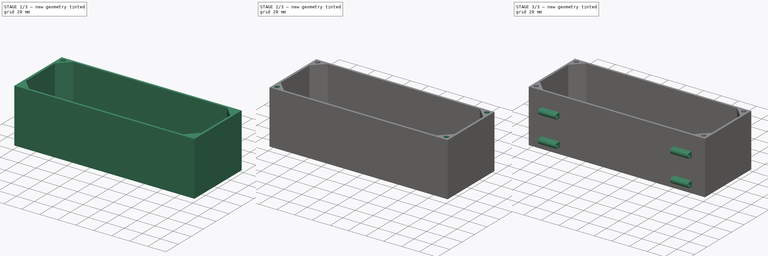
[diagram: build sequence overview — one tinted view per stage of 3, left to right]
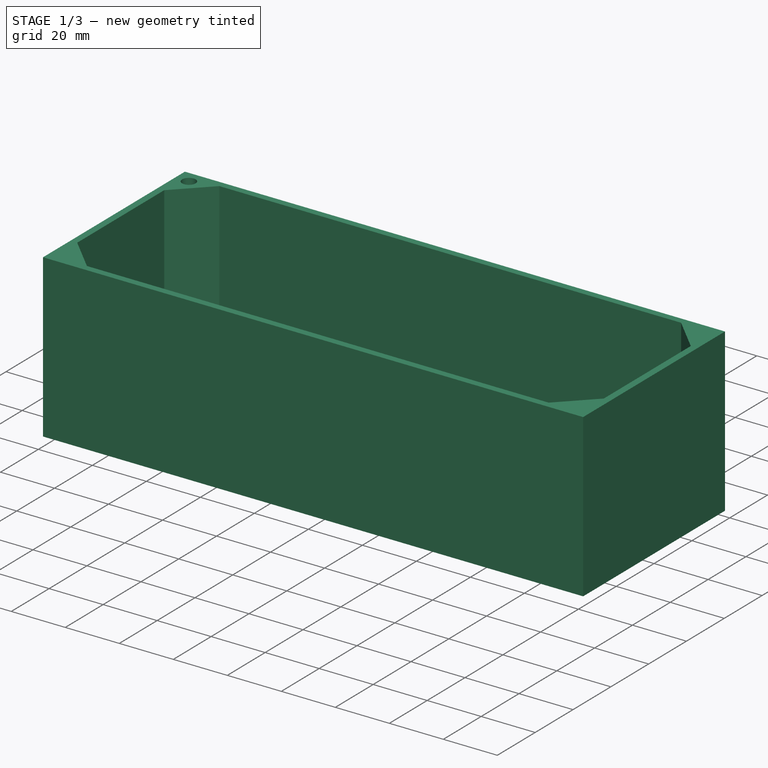
[diagram: stage 1 of 3 — iso view after this stage's code; geometry added in this stage tinted green]
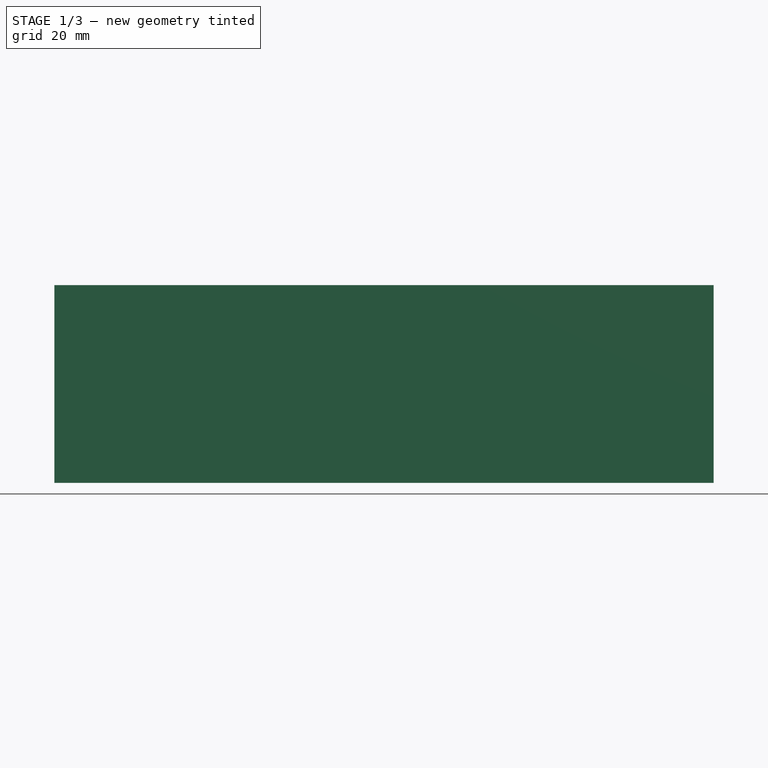
[diagram: stage 1 of 3 — front view after this stage's code; geometry added in this stage tinted green]
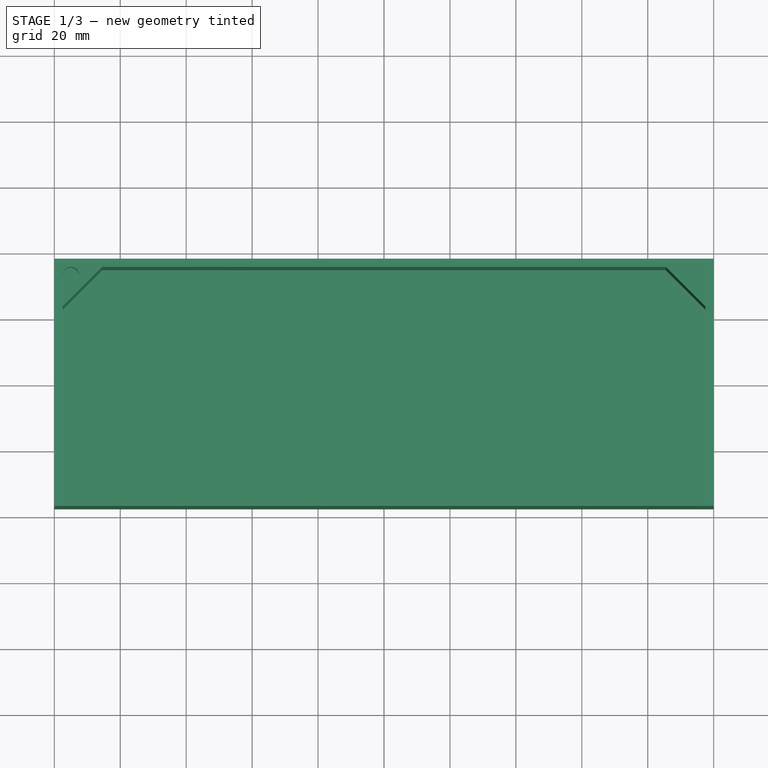
[diagram: stage 1 of 3 — top view after this stage's code; geometry added in this stage tinted green]
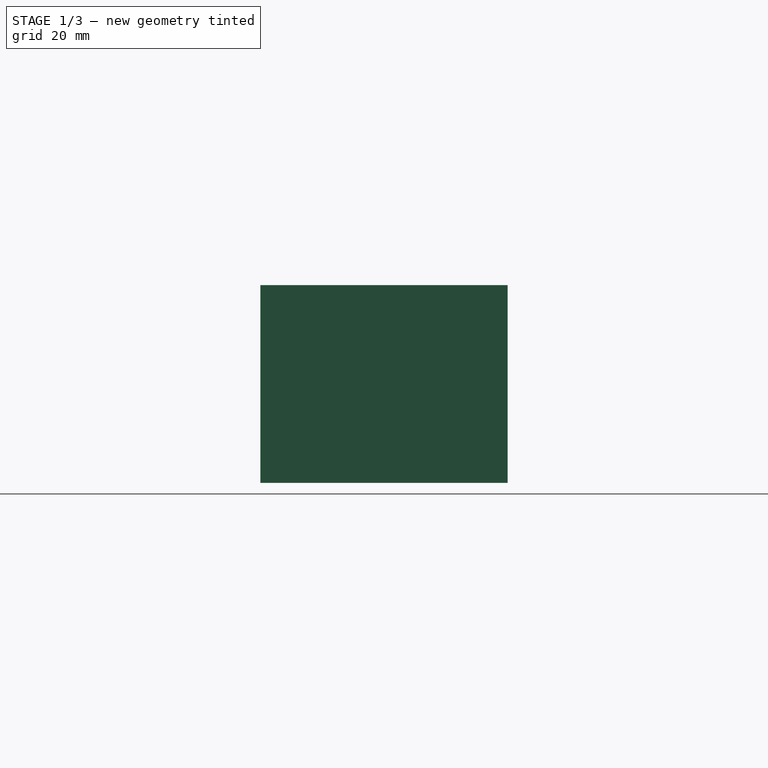
[diagram: stage 1 of 3 — right view after this stage's code; geometry added in this stage tinted green]
FCSTD DOCUMENT  (FreeCAD 1.0R39109 (Git))
Label: gehaeuse-unten
License: All rights reserved
LicenseURL: http://en.wikipedia.org/wiki/All_rights_reserved
objects: PartDesign::Mirrored×6, Sketcher::SketchObject×5, PartDesign::Plane×3, PartDesign::Pocket×3, PartDesign::MultiTransform×3, PartDesign::Pad×2, PartDesign::Body×1
note: 47 computed .brp shape members not serialized (recipe doc carries the construction recipe); baked Part::Feature solids carry a one-line shape summary decoded from their .brp

FEATURE [PartDesign::Plane] DatumPlane
  AttachmentSupport = -> [XY_Plane]
  Length = 226.526
  MapMode = 5
  ResizeMode = 0
  Width = 114.483
FEATURE [Sketcher::SketchObject] Sketch
  ArcFitTolerance = 0
  AttachmentSupport = -> [DatumPlane]
  FullyConstrained = true
  MakeInternals = false
  MapMode = 5
  sketch-geometry (4):
    g0: LineSegment StartX=-100 StartY=-37.5 StartZ=0 EndX=100 EndY=-37.5 EndZ=0
    g1: LineSegment StartX=100 StartY=-37.5 StartZ=0 EndX=100 EndY=37.5 EndZ=0
    g2: LineSegment StartX=100 StartY=37.5 StartZ=0 EndX=-100 EndY=37.5 EndZ=0
    g3: LineSegment StartX=-100 StartY=37.5 StartZ=0 EndX=-100 EndY=-37.5 EndZ=0
  constraints (10):
    c: Coincident(g0,g1)
    c: Coincident(g1,g2)
    c: Coincident(g2,g3)
    c: Coincident(g3,g0)
    c: Horizontal(g0)
    c: Vertical(g3)
    c: Symmetric(g1,g0,g-1)
    c: Symmetric(g2,g1,g-2)
    c: DistanceX(g2,g2) = 200
    c: DistanceY(g1,g1) = 75
FEATURE [PartDesign::Pad] Pad
  Direction = (0,0,1)
  Length = 60
  Length2 = 100
  Profile = -> Sketch
  Suppressed = false
  Type = 0
FEATURE [PartDesign::Plane] DatumPlane001
  AttachmentOffset = pos=(0,0,60) rot=(0,0,1;0rad)
  AttachmentSupport = -> [XY_Plane]
  Length = 226.526
  MapMode = 5
  Placement = pos=(0,0,60) rot=(0,0,1;0rad)
  ResizeMode = 0
  Width = 114.483
FEATURE [Sketcher::SketchObject] Sketch001
  ArcFitTolerance = 0
  AttachmentSupport = -> [DatumPlane001]
  FullyConstrained = true
  MakeInternals = false
  MapMode = 5
  Placement = pos=(0,0,60) rot=(0,0,1;0rad)
  sketch-geometry (8):
    g0: LineSegment StartX=-97.5 StartY=-23 StartZ=0 EndX=-97.5 EndY=23 EndZ=0
    g1: LineSegment StartX=-97.5 StartY=23 StartZ=0 EndX=-85.5 EndY=35 EndZ=0
    g2: LineSegment StartX=-85.5 StartY=35 StartZ=0 EndX=85.5 EndY=35 EndZ=0
    g3: LineSegment StartX=85.5 StartY=35 StartZ=0 EndX=97.5 EndY=23 EndZ=0
    g4: LineSegment StartX=97.5 StartY=23 StartZ=0 EndX=97.5 EndY=-23 EndZ=0
    g5: LineSegment StartX=97.5 StartY=-23 StartZ=0 EndX=85.5 EndY=-35 EndZ=0
    g6: LineSegment StartX=85.5 StartY=-35 StartZ=0 EndX=-85.5 EndY=-35 EndZ=0
    g7: LineSegment StartX=-85.5 StartY=-35 StartZ=0 EndX=-97.5 EndY=-23 EndZ=0
  constraints (19):
    c: Coincident(g0,g1)
    c: Coincident(g1,g2)
    c: Coincident(g2,g3)
    c: Coincident(g3,g4)
    c: Coincident(g4,g5)
    c: Coincident(g5,g6)
    c: Coincident(g6,g7)
    c: Coincident(g7,g0)
    c: Symmetric(g3,g4,g-1)
    c: Symmetric(g0,g0,g-1)
    c: Symmetric(g1,g2,g-2)
    c: Symmetric(g6,g5,g-2)
    c: Symmetric(g2,g5,g-1)
    c: DistanceX(g0,g3) = 195
    c: DistanceY(g5,g2) = 70
    c: DistanceX(g2,g3) = 12
    c: DistanceY(g3,g2) = 12
    c: DistanceX(g0,g1) = 12
    c: DistanceY(g0,g1) = 12
FEATURE [PartDesign::Pocket] Pocket
  BaseFeature = -> Pad
  Direction = (0,0,-1)
  Length = 58
  Length2 = 100
  Profile = -> Sketch001
  Suppressed = false
  Type = 0
FEATURE [Sketcher::SketchObject] Sketch002
  ArcFitTolerance = 0
  AttachmentSupport = -> [DatumPlane001]
  FullyConstrained = true
  MakeInternals = false
  MapMode = 5
  Placement = pos=(0,0,60) rot=(0,0,1;0rad)
  sketch-geometry (1):
    g0: Circle CenterX=-95 CenterY=32.5 CenterZ=0 NormalX=0 NormalY=0 NormalZ=1 AngleXU=0 Radius=2.5
  constraints (3):
    c: DistanceX(g0,g-1) = 95
    c: DistanceY(g-1,g0) = 32.5
    c: Radius(g0) = 2.5
FEATURE [PartDesign::Pocket] Pocket001
  BaseFeature = -> Pocket
  Direction = (0,0,-1)
  Length = 15
  Length2 = 100
  Profile = -> Sketch002
  Suppressed = false
  Type = 0
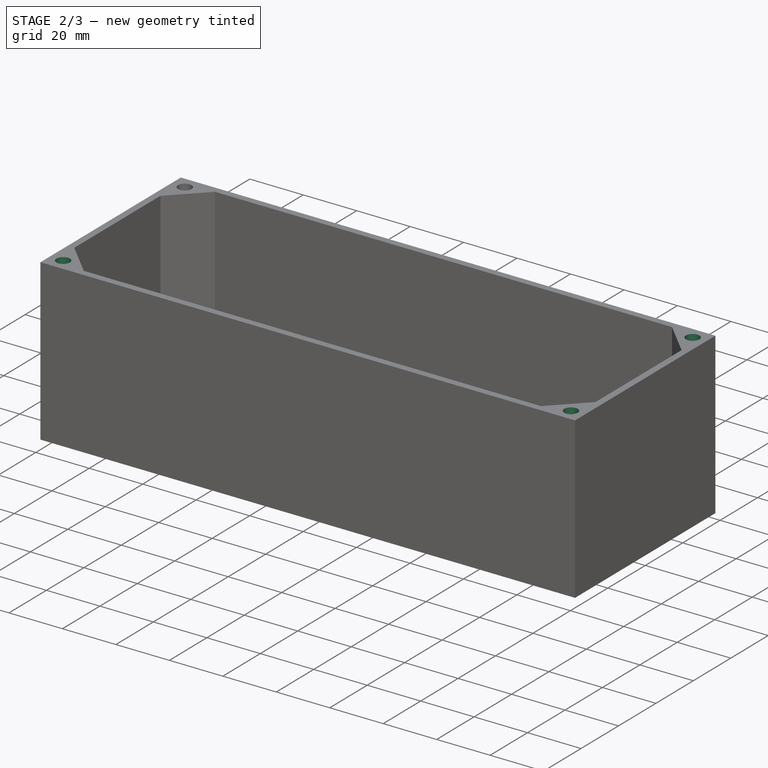
[diagram: stage 2 of 3 — iso view after this stage's code; geometry added in this stage tinted green]
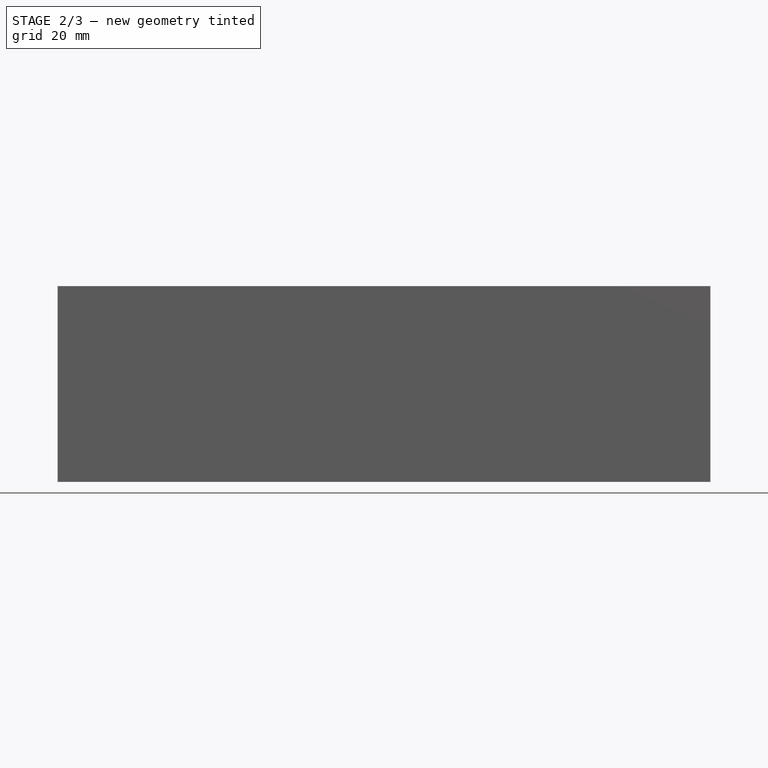
[diagram: stage 2 of 3 — front view after this stage's code; geometry added in this stage tinted green]
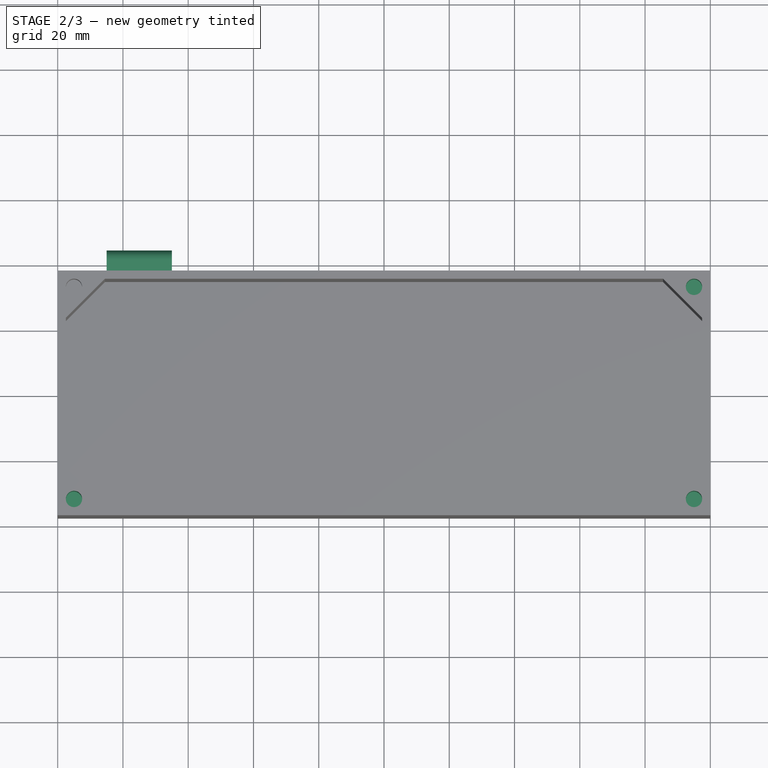
[diagram: stage 2 of 3 — top view after this stage's code; geometry added in this stage tinted green]
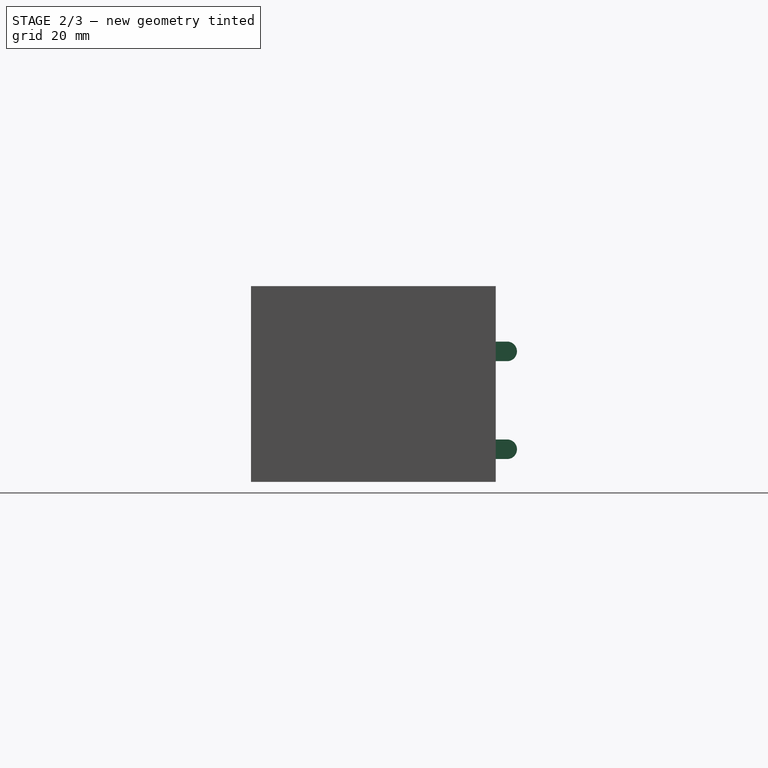
[diagram: stage 2 of 3 — right view after this stage's code; geometry added in this stage tinted green]
FEATURE [PartDesign::Mirrored] Mirrored
  MirrorPlane = -> YZ_Plane
  Suppressed = false
  TransformMode = 0
FEATURE [PartDesign::Mirrored] Mirrored001
  MirrorPlane = -> XZ_Plane
  Suppressed = false
  TransformMode = 0
FEATURE [PartDesign::MultiTransform] MultiTransform
  BaseFeature = -> Pocket001
  Originals = -> [Pocket001]
  Suppressed = false
  TransformMode = 0
  Transformations = -> [Mirrored,Mirrored001]
FEATURE [PartDesign::Plane] DatumPlane002
  AttachmentOffset = pos=(0,0,-75) rot=(0,0,1;0rad)
  AttachmentSupport = -> [YZ_Plane]
  Length = 105.249
  MapMode = 5
  Placement = pos=(-75,0,0) rot=(0.57735,0.57735,0.57735;2.0944rad)
  ResizeMode = 0
  Width = 102.293
FEATURE [Sketcher::SketchObject] Sketch003
  ArcFitTolerance = 0
  AttachmentSupport = -> [DatumPlane002]
  FullyConstrained = true
  MakeInternals = false
  MapMode = 5
  Placement = pos=(-75,0,0) rot=(0.57735,0.57735,0.57735;2.0944rad)
  sketch-geometry (8):
    g0: LineSegment StartX=41 StartY=43 StartZ=0 EndX=37.5 EndY=43 EndZ=0
    g1: LineSegment StartX=37.5 StartY=43 StartZ=0 EndX=37.5 EndY=37 EndZ=0
    g2: LineSegment StartX=37.5 StartY=37 StartZ=0 EndX=41 EndY=37 EndZ=0
    g3: ArcOfCircle CenterX=41 CenterY=40 CenterZ=0 NormalX=0 NormalY=0 NormalZ=1 AngleXU=0 Radius=3 StartAngle=4.71239 EndAngle=7.85398
    g4: LineSegment StartX=41 StartY=7 StartZ=0 EndX=37.5 EndY=7 EndZ=0
    g5: LineSegment StartX=37.5 StartY=7 StartZ=0 EndX=37.5 EndY=13 EndZ=0
    g6: LineSegment StartX=37.5 StartY=13 StartZ=0 EndX=41 EndY=13 EndZ=0
    g7: ArcOfCircle CenterX=41 CenterY=10 CenterZ=0 NormalX=0 NormalY=0 NormalZ=1 AngleXU=0 Radius=3 StartAngle=4.71239 EndAngle=7.85398
  constraints (22):
    c: Horizontal(g0)
    c: Coincident(g0,g1)
    c: Vertical(g1)
    c: Coincident(g1,g2)
    c: Horizontal(g2)
    c: Radius(g3) = 3
    c: DistanceY(g-1,g3) = 40
    c: DistanceX(g-1,g1) = 37.5
    c: Tangent(g3,g0) = -1.5708
    c: Tangent(g3,g2) = -1.5708
    c: Horizontal(g4)
    c: Coincident(g4,g5)
    c: Vertical(g5)
    c: Coincident(g5,g6)
    c: Horizontal(g6)
    c: Tangent(g7,g6) = 1.5708
    c: Tangent(g7,g4) = 1.5708
    c: DistanceY(g-1,g7) = 10
    c: Radius(g7) = 3
    c: DistanceX(g-1,g4) = 37.5
    c: Vertical(g3,g7)
    c: DistanceX(g-1,g3) = 41
FEATURE [PartDesign::Pad] Pad001
  BaseFeature = -> MultiTransform
  Direction = (1,0,0)
  Length = 20
  Length2 = 100
  Midplane = true
  Profile = -> Sketch003
  Suppressed = false
  Type = 0
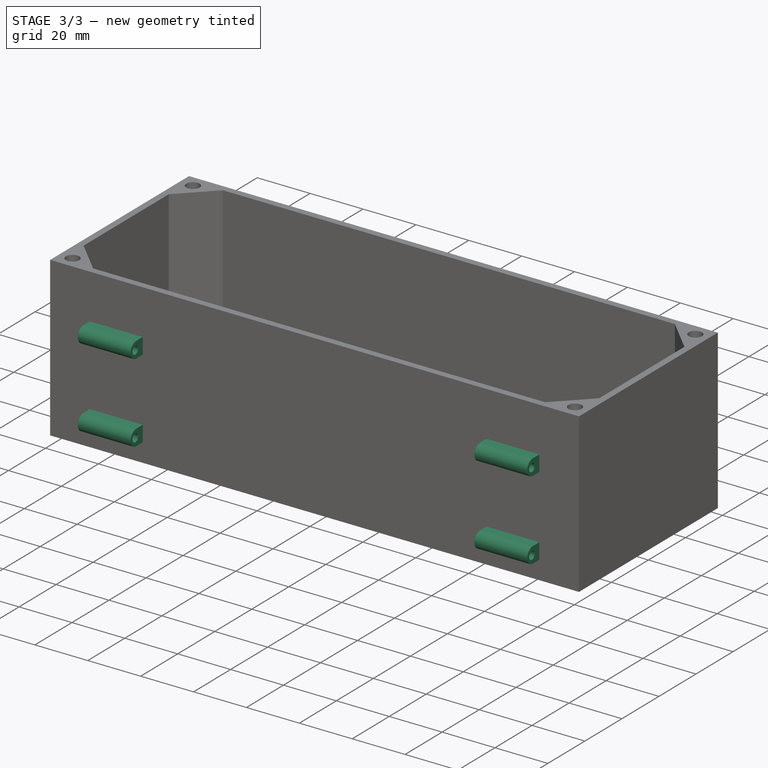
[diagram: stage 3 of 3 — iso view after this stage's code; geometry added in this stage tinted green]
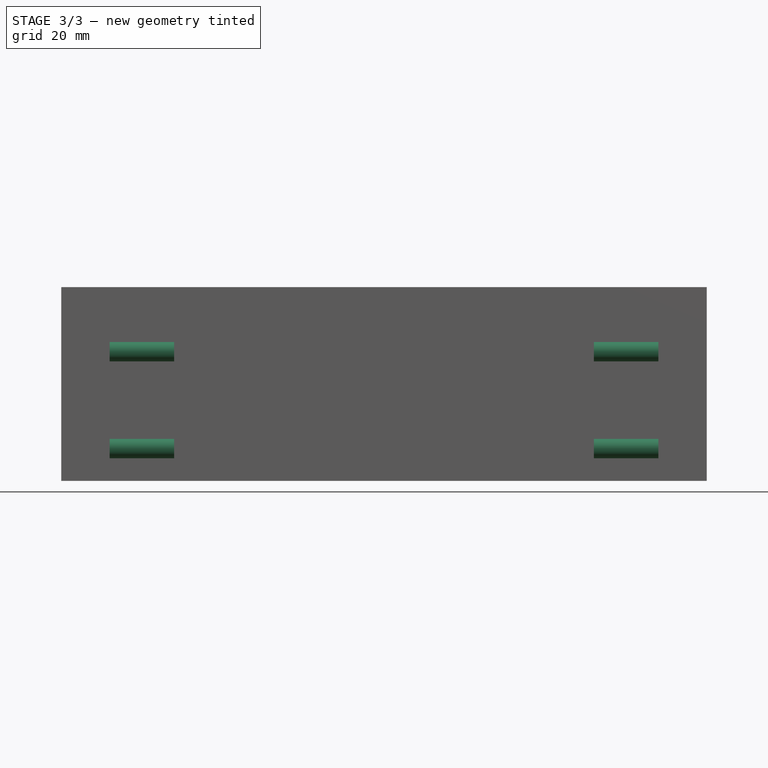
[diagram: stage 3 of 3 — front view after this stage's code; geometry added in this stage tinted green]
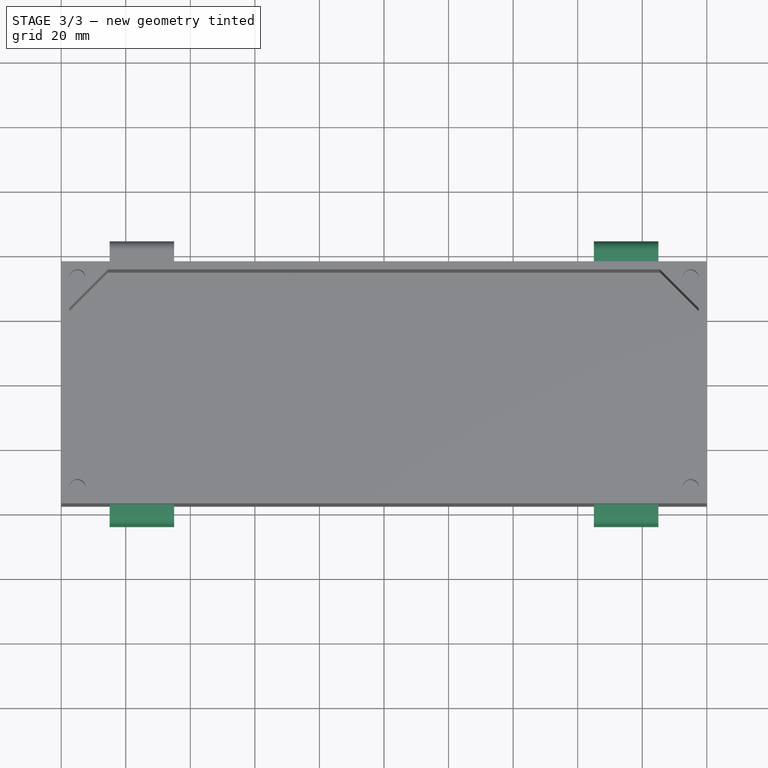
[diagram: stage 3 of 3 — top view after this stage's code; geometry added in this stage tinted green]
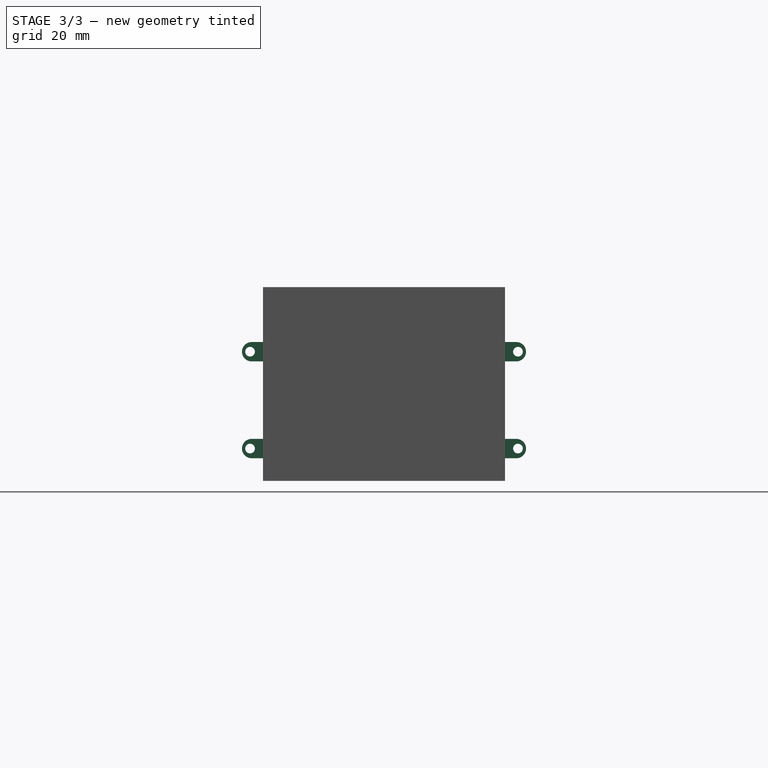
[diagram: stage 3 of 3 — right view after this stage's code; geometry added in this stage tinted green]
FEATURE [PartDesign::Mirrored] Mirrored002
  MirrorPlane = -> YZ_Plane
  Suppressed = false
  TransformMode = 0
FEATURE [PartDesign::Mirrored] Mirrored003
  MirrorPlane = -> XZ_Plane
  Suppressed = false
  TransformMode = 0
FEATURE [PartDesign::MultiTransform] MultiTransform001
  BaseFeature = -> Pad001
  Originals = -> [Pad001]
  Suppressed = false
  TransformMode = 0
  Transformations = -> [Mirrored002,Mirrored003]
FEATURE [Sketcher::SketchObject] Sketch004
  ArcFitTolerance = 0
  AttachmentSupport = -> [DatumPlane002]
  FullyConstrained = true
  MakeInternals = false
  MapMode = 5
  Placement = pos=(-75,0,0) rot=(0.57735,0.57735,0.57735;2.0944rad)
  sketch-geometry (2):
    g0: Circle CenterX=41.5 CenterY=40 CenterZ=0 NormalX=0 NormalY=0 NormalZ=1 AngleXU=0 Radius=1.5
    g1: Circle CenterX=41.5 CenterY=10 CenterZ=0 NormalX=0 NormalY=0 NormalZ=1 AngleXU=0 Radius=1.5
  constraints (6):
    c: DistanceY(g-1,g1) = 10
    c: DistanceY(g-1,g0) = 40
    c: DistanceX(g-1,g0) = 41.5
    c: Radius(g0) = 1.5
    c: Equal(g0,g1)
    c: Vertical(g0,g1)
FEATURE [PartDesign::Pocket] Pocket002
  BaseFeature = -> MultiTransform001
  Direction = (-1,0,0)
  Length = 20
  Length2 = 100
  Midplane = true
  Profile = -> Sketch004
  Suppressed = false
  Type = 0
FEATURE [PartDesign::Mirrored] Mirrored004
  MirrorPlane = -> YZ_Plane
  Suppressed = false
  TransformMode = 0
FEATURE [PartDesign::Mirrored] Mirrored005
  MirrorPlane = -> XZ_Plane
  Suppressed = false
  TransformMode = 0
FEATURE [PartDesign::MultiTransform] MultiTransform002
  BaseFeature = -> Pocket002
  Originals = -> [Pocket002]
  Suppressed = false
  TransformMode = 0
  Transformations = -> [Mirrored004,Mirrored005]
FEATURE [PartDesign::Body] Body
  AllowCompound = false
  Group = -> [DatumPlane,Sketch,Pad,DatumPlane001,Sketch001,Pocket,Sketch002,Pocket001,MultiTransform,Mirrored,Mirrored001,DatumPlane002,Sketch003,Pad001,MultiTransform001,Mirrored002,Mirrored003,Sketch004,Pocket002,MultiTransform002,Mirrored004,Mirrored005]
  Origin = -> Origin
  Tip = -> MultiTransform002
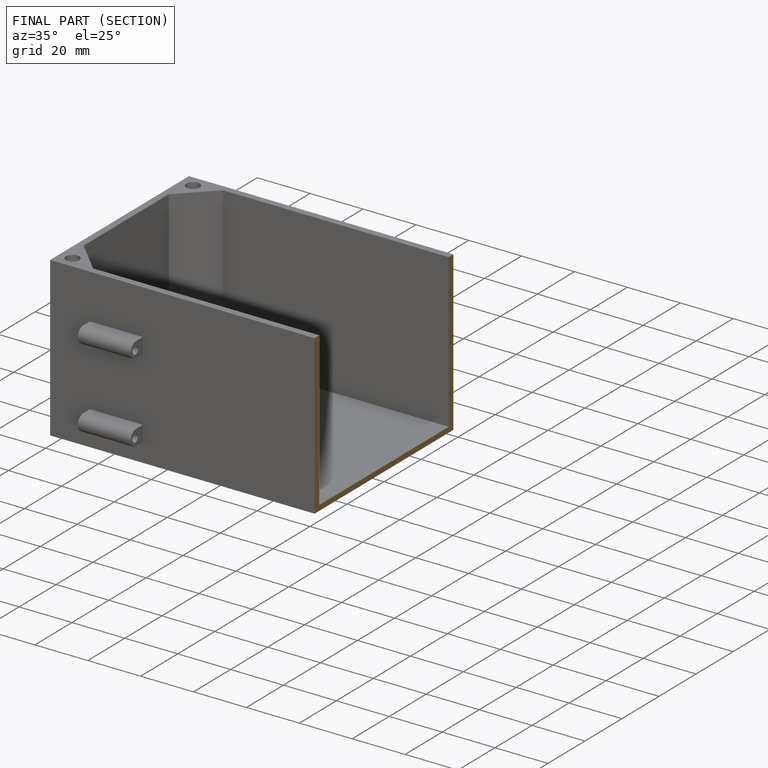
[diagram: finished part — half-section view (interior)]
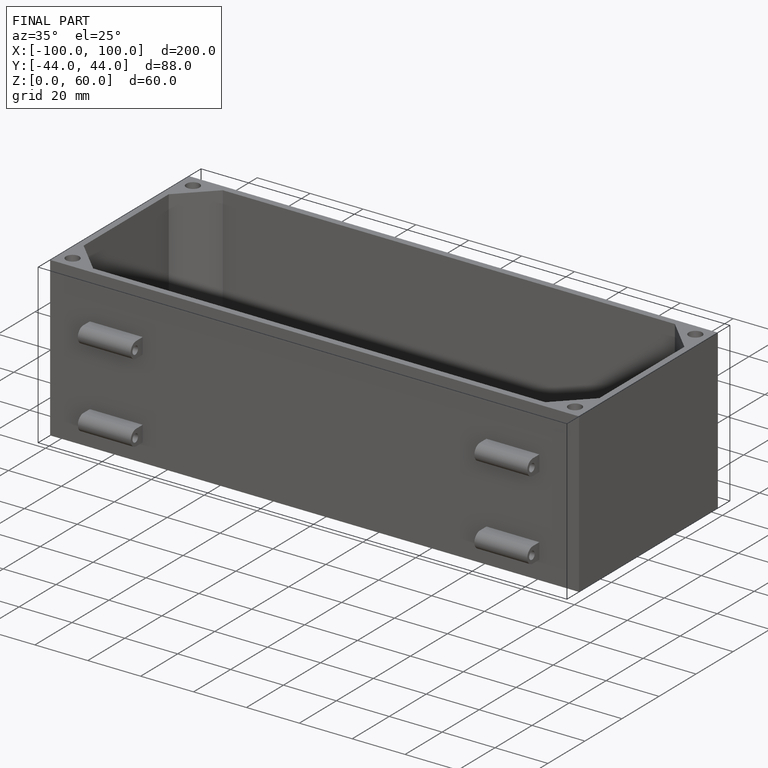
[diagram: finished part — iso view with bounding-box wireframe]
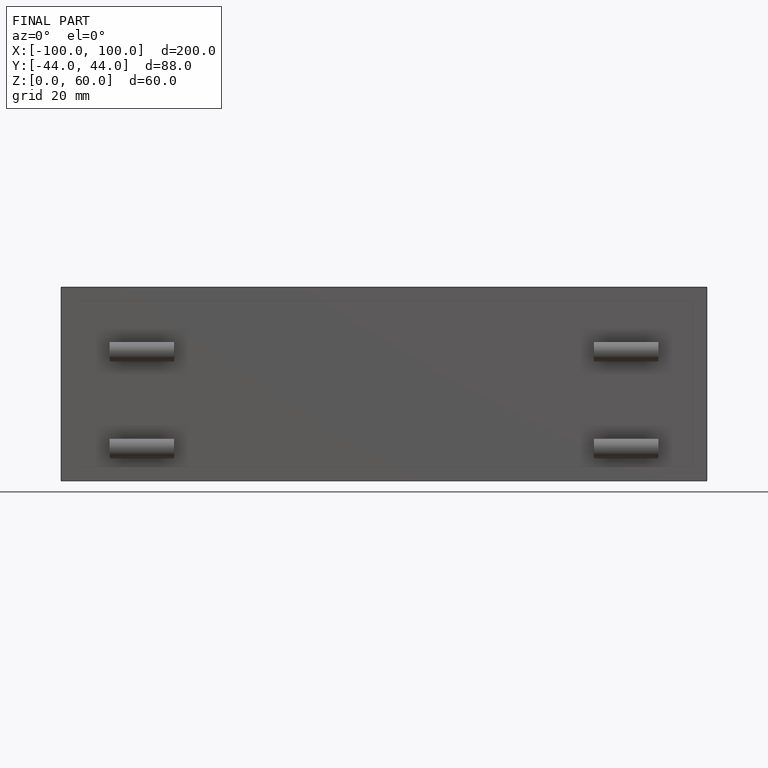
[diagram: finished part — front view with bounding-box wireframe]
